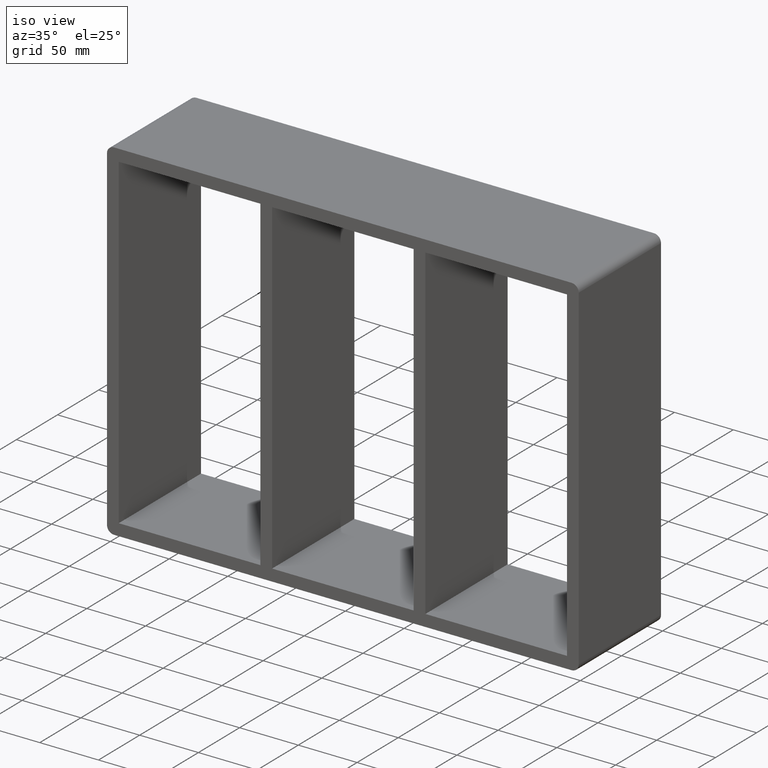
[diagram: clean part render]
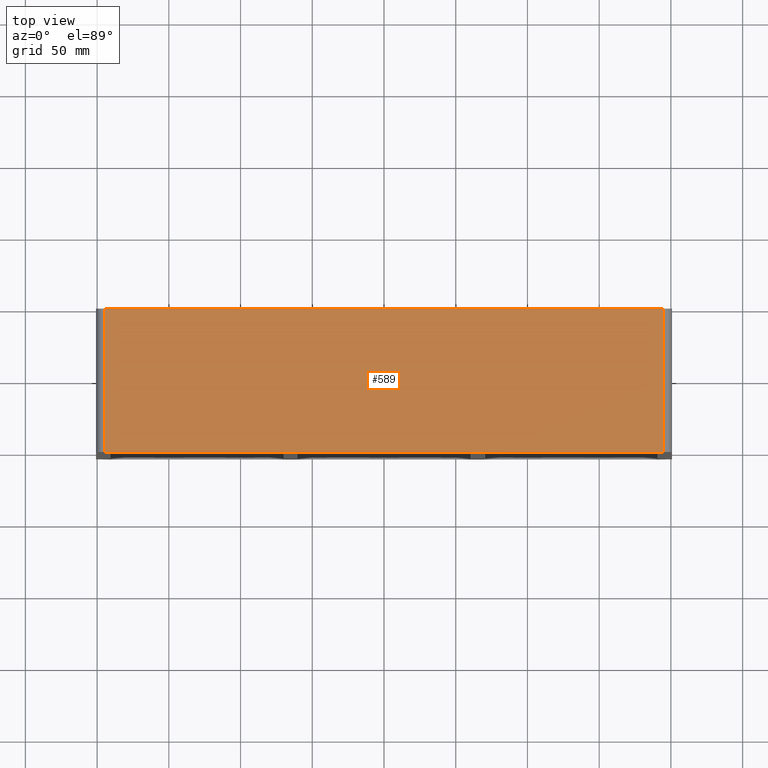
[diagram: tour spotlight — one face highlighted and labeled with its STEP entity id]
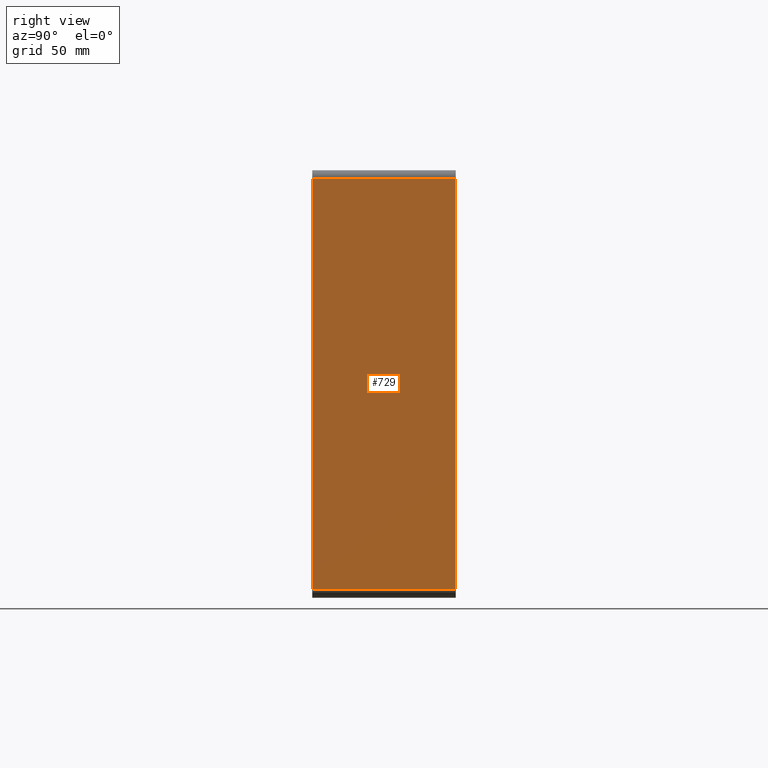
[diagram: tour spotlight — one face highlighted and labeled with its STEP entity id]
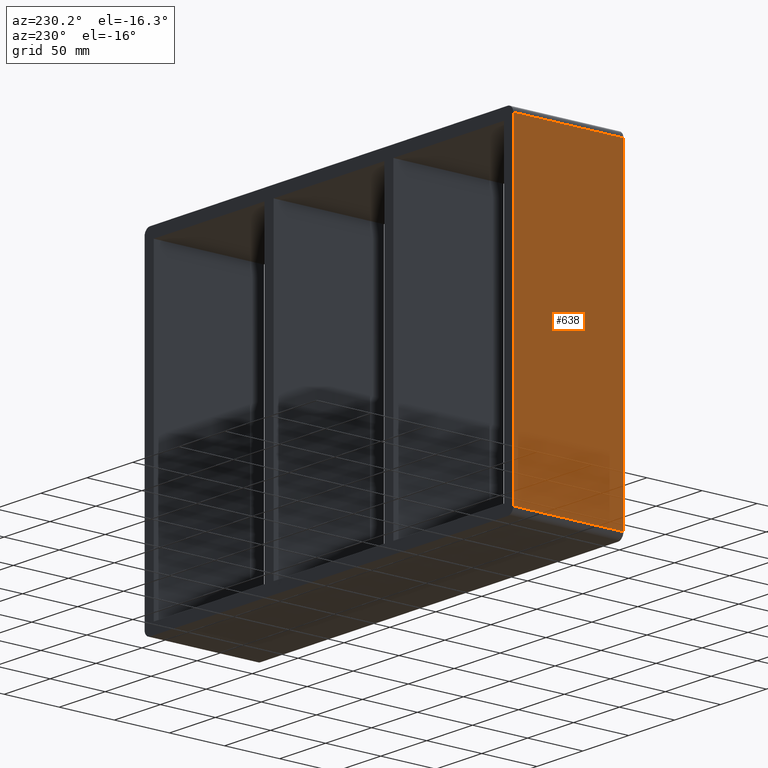
[diagram: tour spotlight — one face highlighted and labeled with its STEP entity id]
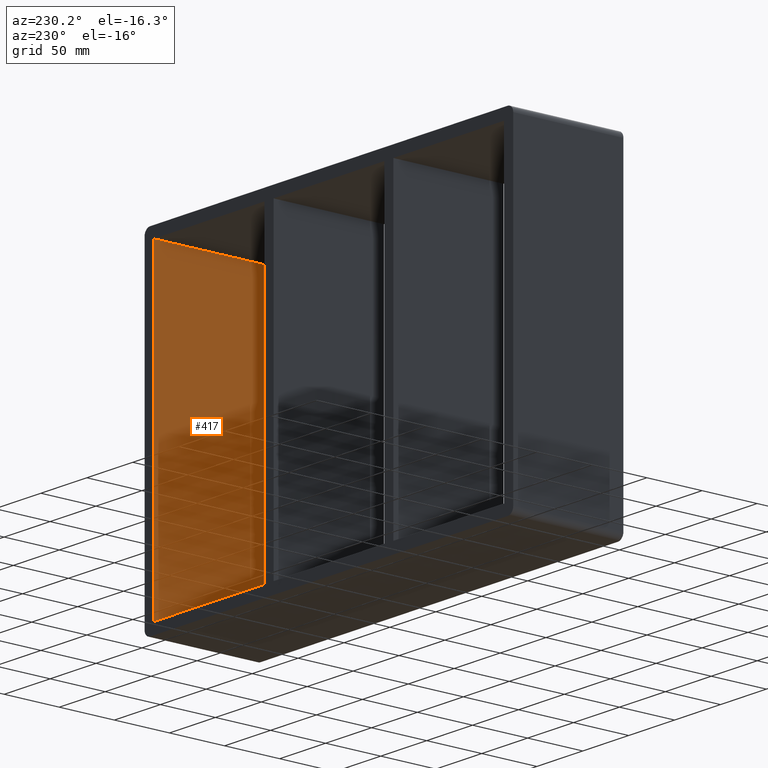
[diagram: tour spotlight — one face highlighted and labeled with its STEP entity id]
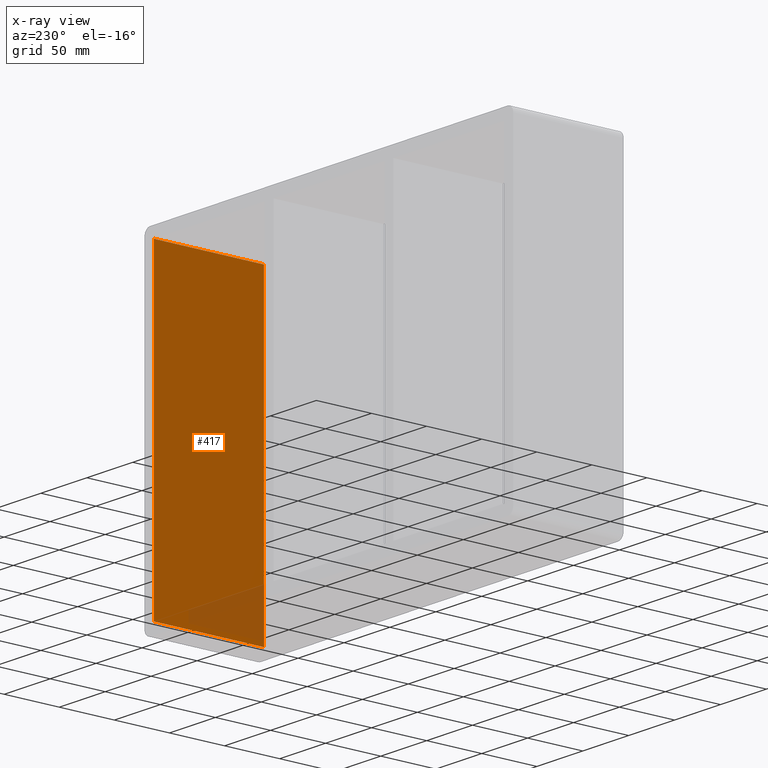
[diagram: x-ray of the same camera — body ghosted, this tour face saturated]
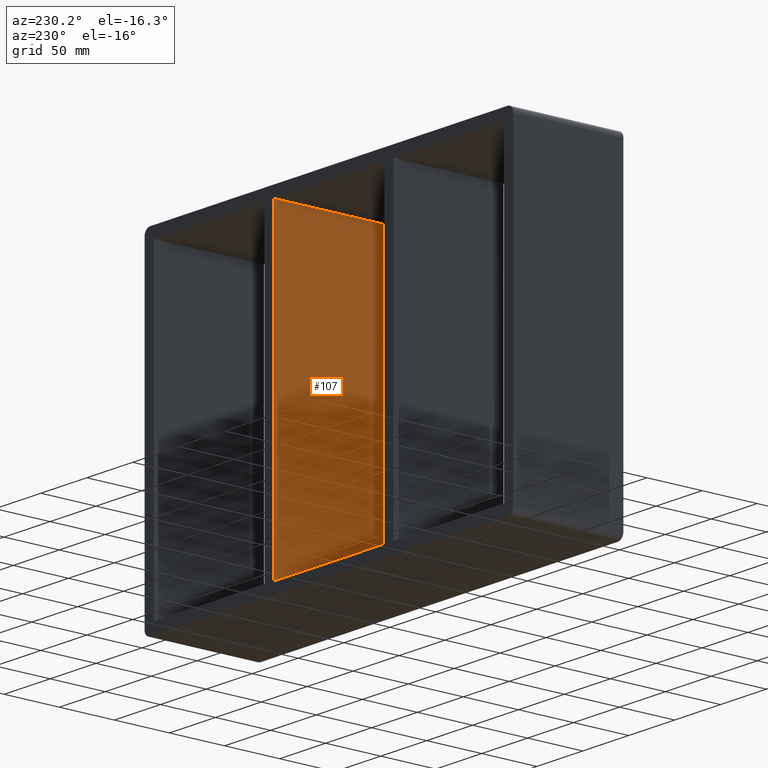
[diagram: tour spotlight — one face highlighted and labeled with its STEP entity id]
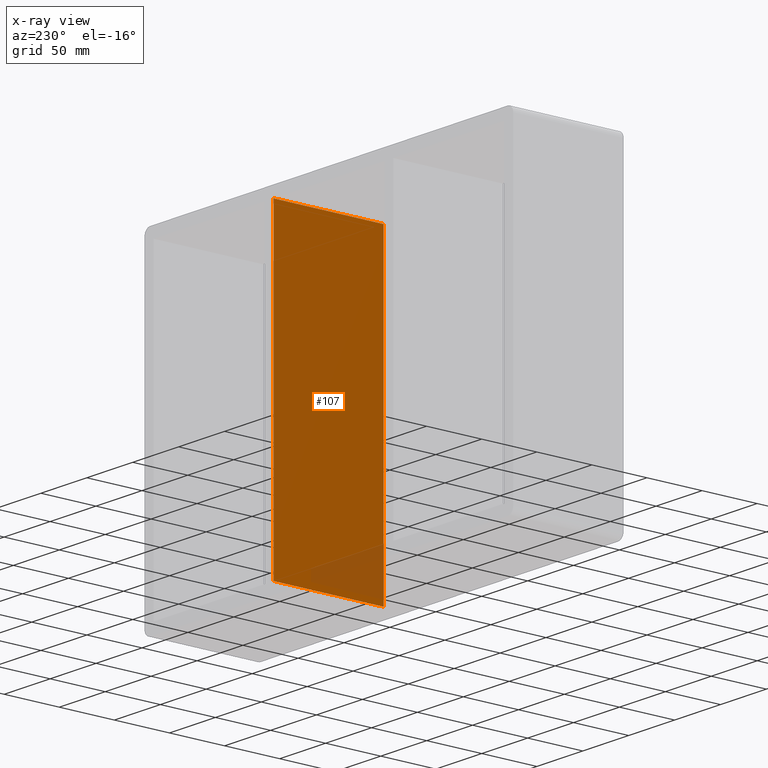
[diagram: x-ray of the same camera — body ghosted, this tour face saturated]
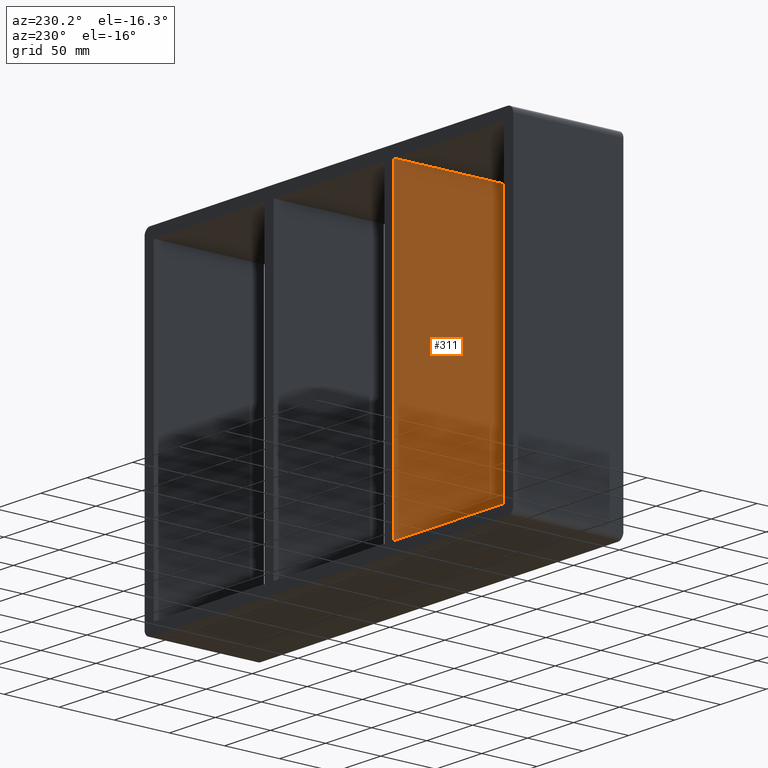
[diagram: tour spotlight — one face highlighted and labeled with its STEP entity id]
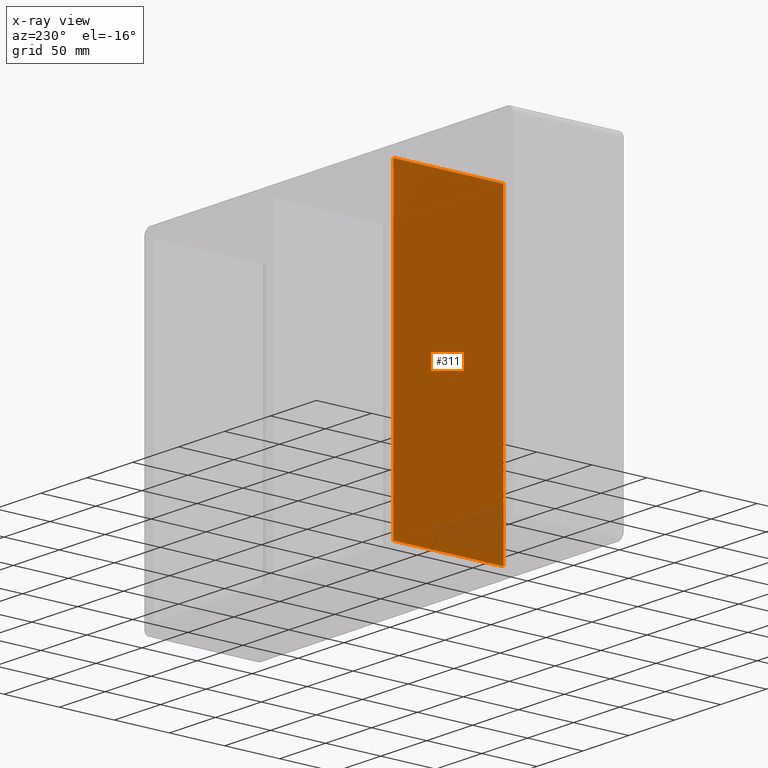
[diagram: x-ray of the same camera — body ghosted, this tour face saturated]
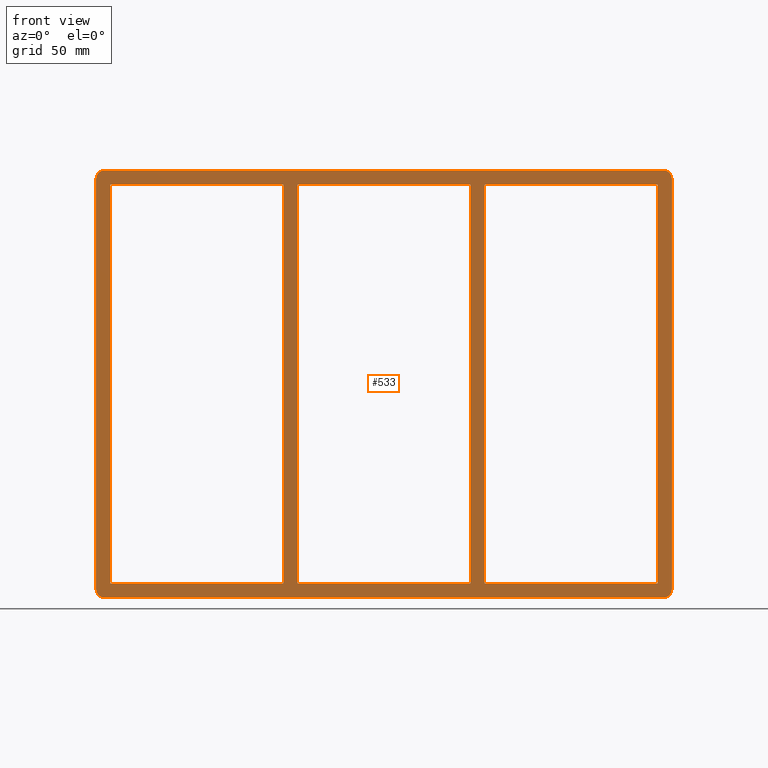
[diagram: tour spotlight — one face highlighted and labeled with its STEP entity id]
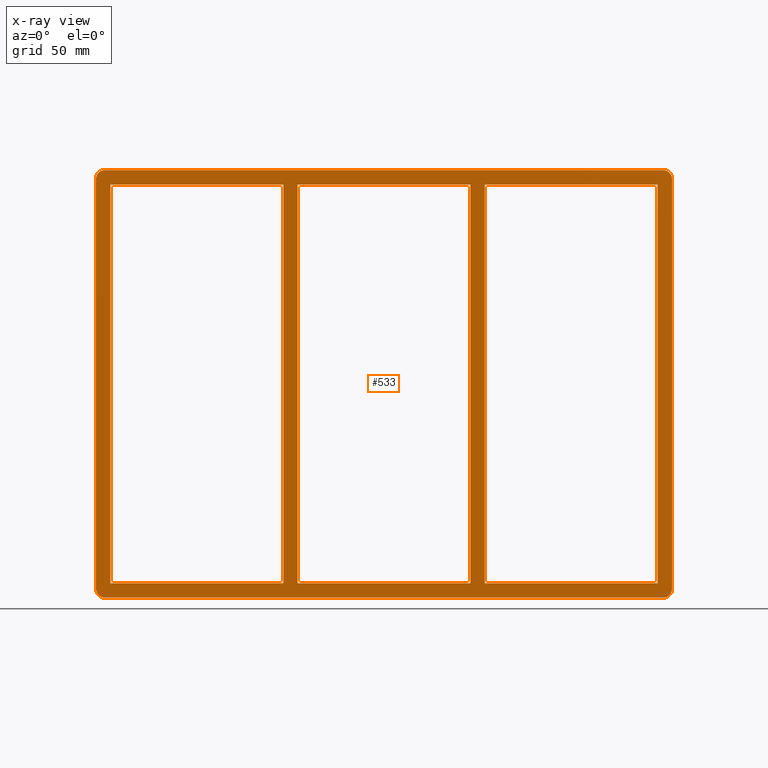
[diagram: x-ray of the same camera — body ghosted, this tour face saturated]
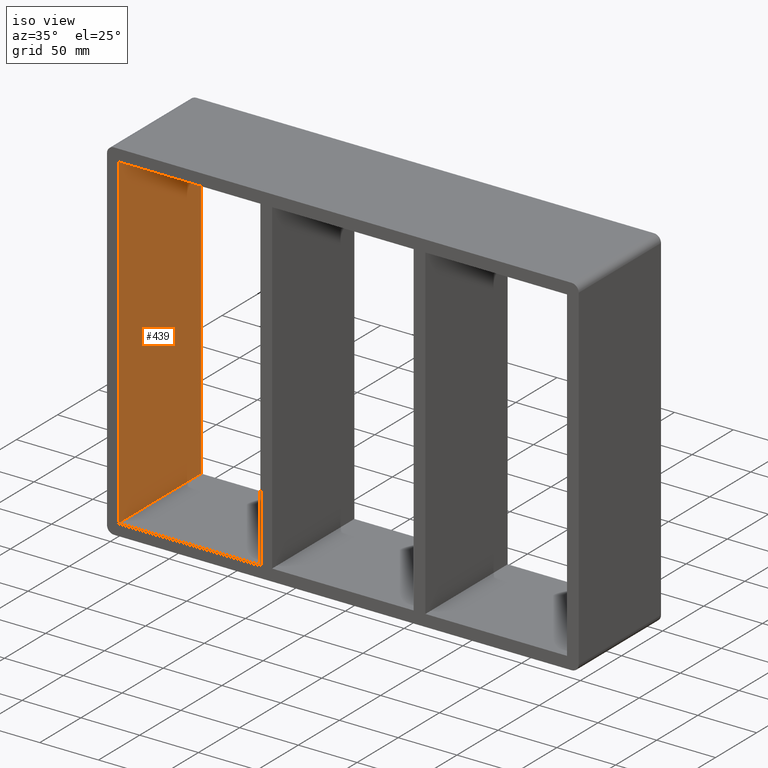
[diagram: tour spotlight — one face highlighted and labeled with its STEP entity id]
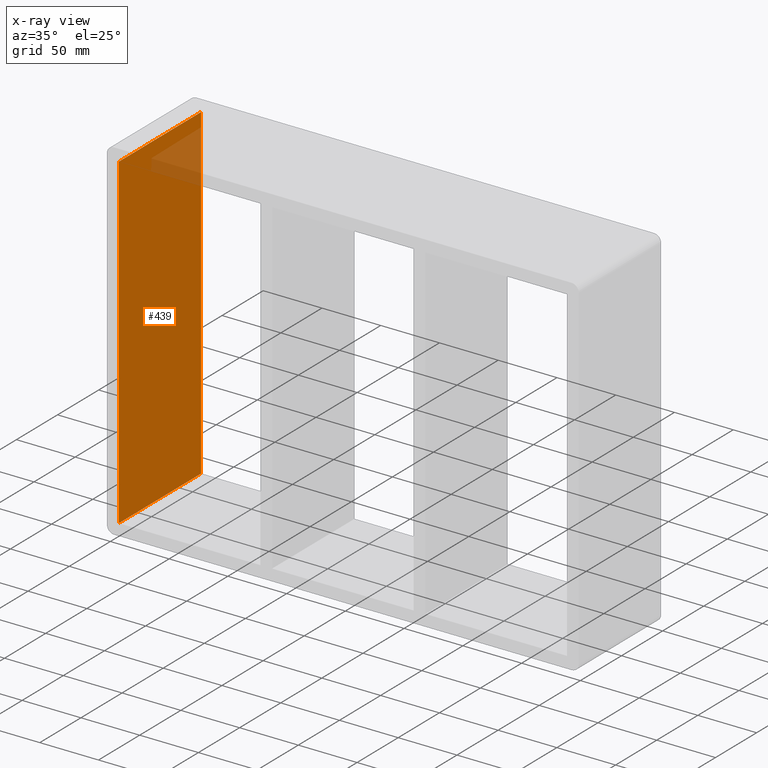
[diagram: x-ray of the same camera — body ghosted, this tour face saturated]
A machine part: a face-by-face anatomy tour. The part has 22 B-rep faces; the first image is the clean iso view, then the 8 largest visible faces are spotlighted one at a time (largest first), each with its STEP entity span.

Face 1 — top view, entity #589. In plain terms, the highlighted planar face has unit normal (0, 0, 1).
Definition (entity closure, byte-faithful):
#455=CARTESIAN_POINT('',(194.75,-3.0,149.00000000000003));
#456=VERTEX_POINT('',#455);
#464=CARTESIAN_POINT('',(-194.75,-3.0,149.00000000000003));
#465=VERTEX_POINT('',#464);
#466=CARTESIAN_POINT('',(194.75,-3.0,149.00000000000003));
#467=DIRECTION('',(-1.0,0.0,0.0));
#468=VECTOR('',#467,389.5);
#469=LINE('',#466,#468);
#470=EDGE_CURVE('',#456,#465,#469,.T.);
#547=CARTESIAN_POINT('',(194.75,97.0,149.00000000000003));
#548=VERTEX_POINT('',#547);
#556=CARTESIAN_POINT('',(194.75,-3.0,149.00000000000003));
#557=DIRECTION('',(0.0,1.0,0.0));
#558=VECTOR('',#557,100.0);
#559=LINE('',#556,#558);
#560=EDGE_CURVE('',#456,#548,#559,.T.);
#566=CARTESIAN_POINT('',(-194.75,0.0,149.00000000000003));
#567=DIRECTION('',(0.0,0.0,1.0));
#568=DIRECTION('',(1.0,0.0,0.0));
#569=AXIS2_PLACEMENT_3D('',#566,#567,#568);
#570=PLANE('',#569);
#571=ORIENTED_EDGE('',*,*,#560,.T.);
#572=CARTESIAN_POINT('',(-194.75,97.0,149.00000000000003));
#573=VERTEX_POINT('',#572);
#574=CARTESIAN_POINT('',(-194.75,97.0,149.00000000000003));
#575=DIRECTION('',(1.0,0.0,0.0));
#576=VECTOR('',#575,389.5);
#577=LINE('',#574,#576);
#578=EDGE_CURVE('',#573,#548,#577,.T.);
#579=ORIENTED_EDGE('',*,*,#578,.F.);
#580=CARTESIAN_POINT('',(-194.75,-3.0,149.00000000000003));
#581=DIRECTION('',(0.0,1.0,0.0));
#582=VECTOR('',#581,100.0);
#583=LINE('',#580,#582);
#584=EDGE_CURVE('',#465,#573,#583,.T.);
#585=ORIENTED_EDGE('',*,*,#584,.F.);
#586=ORIENTED_EDGE('',*,*,#470,.F.);
#587=EDGE_LOOP('',(#571,#579,#585,#586));
#588=FACE_OUTER_BOUND('',#587,.T.);
#589=ADVANCED_FACE('',(#588),#570,.T.);

Face 2 — right view, entity #729. In plain terms, the highlighted planar face has unit normal (1, 0, 0).
Definition (entity closure, byte-faithful):
#445=CARTESIAN_POINT('',(200.75000000000003,-3.0,-143.0));
#446=VERTEX_POINT('',#445);
#447=CARTESIAN_POINT('',(200.75000000000003,-3.0,143.0));
#448=VERTEX_POINT('',#447);
#449=CARTESIAN_POINT('',(200.75000000000003,-3.0,-142.99999999999997));
#450=DIRECTION('',(0.0,0.0,1.0));
#451=VECTOR('',#450,286.0);
#452=LINE('',#449,#451);
#453=EDGE_CURVE('',#446,#448,#452,.T.);
#539=CARTESIAN_POINT('',(200.75000000000003,97.0,143.0));
#540=VERTEX_POINT('',#539);
#541=CARTESIAN_POINT('',(200.75000000000003,97.0,143.0));
#542=DIRECTION('',(0.0,-1.0,0.0));
#543=VECTOR('',#542,100.0);
#544=LINE('',#541,#543);
#545=EDGE_CURVE('',#540,#448,#544,.T.);
#694=CARTESIAN_POINT('',(200.75000000000003,97.0,-143.0));
#695=VERTEX_POINT('',#694);
#703=CARTESIAN_POINT('',(200.75000000000003,-3.0,-143.0));
#704=DIRECTION('',(0.0,1.0,0.0));
#705=VECTOR('',#704,100.0);
#706=LINE('',#703,#705);
#707=EDGE_CURVE('',#446,#695,#706,.T.);
#713=CARTESIAN_POINT('',(200.75000000000003,0.0,143.0));
#714=DIRECTION('',(1.0,0.0,0.0));
#715=DIRECTION('',(0.0,0.0,-1.0));
#716=AXIS2_PLACEMENT_3D('',#713,#714,#715);
#717=PLANE('',#716);
#718=ORIENTED_EDGE('',*,*,#707,.T.);
#719=CARTESIAN_POINT('',(200.75000000000003,97.0,143.0));
#720=DIRECTION('',(0.0,0.0,-1.0));
#721=VECTOR('',#720,286.0);
#722=LINE('',#719,#721);
#723=EDGE_CURVE('',#540,#695,#722,.T.);
#724=ORIENTED_EDGE('',*,*,#723,.F.);
#725=ORIENTED_EDGE('',*,*,#545,.T.);
#726=ORIENTED_EDGE('',*,*,#453,.F.);
#727=EDGE_LOOP('',(#718,#724,#725,#726));
#728=FACE_OUTER_BOUND('',#727,.T.);
#729=ADVANCED_FACE('',(#728),#717,.T.);

Face 3 — auxiliary view, entity #638. In plain terms, the highlighted planar face has unit normal (-1, 0, 0).
Definition (entity closure, byte-faithful):
#472=CARTESIAN_POINT('',(-200.75000000000003,-3.0,143.0));
#473=VERTEX_POINT('',#472);
#481=CARTESIAN_POINT('',(-200.75000000000003,-3.0,-143.0));
#482=VERTEX_POINT('',#481);
#483=CARTESIAN_POINT('',(-200.75000000000003,-3.0,143.0));
#484=DIRECTION('',(0.0,0.0,-1.0));
#485=VECTOR('',#484,286.0);
#486=LINE('',#483,#485);
#487=EDGE_CURVE('',#473,#482,#486,.T.);
#596=CARTESIAN_POINT('',(-200.75000000000003,97.0,143.0));
#597=VERTEX_POINT('',#596);
#605=CARTESIAN_POINT('',(-200.75000000000003,-3.0,143.0));
#606=DIRECTION('',(0.0,1.0,0.0));
#607=VECTOR('',#606,100.0);
#608=LINE('',#605,#607);
#609=EDGE_CURVE('',#473,#597,#608,.T.);
#615=CARTESIAN_POINT('',(-200.75000000000003,0.0,-143.0));
#616=DIRECTION('',(-1.0,0.0,0.0));
#617=DIRECTION('',(0.0,0.0,1.0));
#618=AXIS2_PLACEMENT_3D('',#615,#616,#617);
#619=PLANE('',#618);
#620=ORIENTED_EDGE('',*,*,#609,.T.);
#621=CARTESIAN_POINT('',(-200.75000000000003,97.0,-143.0));
#622=VERTEX_POINT('',#621);
#623=CARTESIAN_POINT('',(-200.75000000000003,97.0,-142.99999999999997));
#624=DIRECTION('',(0.0,0.0,1.0));
#625=VECTOR('',#624,286.0);
#626=LINE('',#623,#625);
#627=EDGE_CURVE('',#622,#597,#626,.T.);
#628=ORIENTED_EDGE('',*,*,#627,.F.);
#629=CARTESIAN_POINT('',(-200.75000000000003,-3.0,-143.0));
#630=DIRECTION('',(0.0,1.0,0.0));
#631=VECTOR('',#630,100.0);
#632=LINE('',#629,#631);
#633=EDGE_CURVE('',#482,#622,#632,.T.);
#634=ORIENTED_EDGE('',*,*,#633,.F.);
#635=ORIENTED_EDGE('',*,*,#487,.F.);
#636=EDGE_LOOP('',(#620,#628,#634,#635));
#637=FACE_OUTER_BOUND('',#636,.T.);
#638=ADVANCED_FACE('',(#637),#619,.T.);

Face 4 — auxiliary view, entity #417. An x-ray twin of the same camera follows (body ghosted, this face saturated) — the face is partly hidden behind the body. In plain terms, the highlighted planar face has unit normal (1, 0, 0).
Definition (entity closure, byte-faithful):
#185=CARTESIAN_POINT('',(190.75,-3.0,-139.0));
#186=VERTEX_POINT('',#185);
#193=CARTESIAN_POINT('',(190.75,97.0,-139.0));
#194=VERTEX_POINT('',#193);
#195=CARTESIAN_POINT('',(190.75,97.0,-139.0));
#196=DIRECTION('',(0.0,-1.0,0.0));
#197=VECTOR('',#196,100.0);
#198=LINE('',#195,#197);
#199=EDGE_CURVE('',#194,#186,#198,.T.);
#216=CARTESIAN_POINT('',(190.75,97.0,139.0));
#217=VERTEX_POINT('',#216);
#224=CARTESIAN_POINT('',(190.75,-3.0,139.0));
#225=VERTEX_POINT('',#224);
#226=CARTESIAN_POINT('',(190.75,-3.0,139.0));
#227=DIRECTION('',(0.0,1.0,0.0));
#228=VECTOR('',#227,100.0);
#229=LINE('',#226,#228);
#230=EDGE_CURVE('',#225,#217,#229,.T.);
#396=CARTESIAN_POINT('',(190.75,0.0,139.0));
#397=DIRECTION('',(1.0,0.0,0.0));
#398=DIRECTION('',(0.0,0.0,-1.0));
#399=AXIS2_PLACEMENT_3D('',#396,#397,#398);
#400=PLANE('',#399);
#401=ORIENTED_EDGE('',*,*,#199,.T.);
#402=CARTESIAN_POINT('',(190.75,-3.0,139.0));
#403=DIRECTION('',(0.0,0.0,-1.0));
#404=VECTOR('',#403,278.0);
#405=LINE('',#402,#404);
#406=EDGE_CURVE('',#225,#186,#405,.T.);
#407=ORIENTED_EDGE('',*,*,#406,.F.);
#408=ORIENTED_EDGE('',*,*,#230,.T.);
#409=CARTESIAN_POINT('',(190.75,97.0,-139.0));
#410=DIRECTION('',(0.0,0.0,1.0));
#411=VECTOR('',#410,278.0);
#412=LINE('',#409,#411);
#413=EDGE_CURVE('',#194,#217,#412,.T.);
#414=ORIENTED_EDGE('',*,*,#413,.F.);
#415=EDGE_LOOP('',(#401,#407,#408,#414));
#416=FACE_OUTER_BOUND('',#415,.T.);
#417=ADVANCED_FACE('',(#416),#400,.F.);

Face 5 — auxiliary view, entity #107. An x-ray twin of the same camera follows (body ghosted, this face saturated) — the face is partly hidden behind the body. In plain terms, the highlighted planar face has unit normal (-1, 0, 0).
Definition (entity closure, byte-faithful):
#68=CARTESIAN_POINT('',(60.24999999998407,-3.0,-139.0));
#69=DIRECTION('',(-1.0,0.0,0.0));
#70=DIRECTION('',(0.0,0.0,1.0));
#71=AXIS2_PLACEMENT_3D('',#68,#69,#70);
#72=PLANE('',#71);
#73=CARTESIAN_POINT('',(60.24999999998407,-3.0,-139.0));
#74=VERTEX_POINT('',#73);
#75=CARTESIAN_POINT('',(60.249999999983999,-3.0,139.0));
#76=VERTEX_POINT('',#75);
#77=CARTESIAN_POINT('',(60.24999999998407,-3.0,-139.0));
#78=DIRECTION('',(0.0,0.0,1.0));
#79=VECTOR('',#78,278.0);
#80=LINE('',#77,#79);
#81=EDGE_CURVE('',#74,#76,#80,.T.);
#82=ORIENTED_EDGE('',*,*,#81,.T.);
#83=CARTESIAN_POINT('',(60.249999999983999,97.0,139.0));
#84=VERTEX_POINT('',#83);
#85=CARTESIAN_POINT('',(60.249999999983999,97.0,139.0));
#86=DIRECTION('',(0.0,-1.0,0.0));
#87=VECTOR('',#86,100.0);
#88=LINE('',#85,#87);
#89=EDGE_CURVE('',#84,#76,#88,.T.);
#90=ORIENTED_EDGE('',*,*,#89,.F.);
#91=CARTESIAN_POINT('',(60.24999999998407,97.0,-139.0));
#92=VERTEX_POINT('',#91);
#93=CARTESIAN_POINT('',(60.24999999998407,97.0,-139.0));
#94=DIRECTION('',(0.0,0.0,1.0));
#95=VECTOR('',#94,278.0);
#96=LINE('',#93,#95);
#97=EDGE_CURVE('',#92,#84,#96,.T.);
#98=ORIENTED_EDGE('',*,*,#97,.F.);
#99=CARTESIAN_POINT('',(60.24999999998407,-3.0,-139.0));
#100=DIRECTION('',(0.0,1.0,0.0));
#101=VECTOR('',#100,100.0);
#102=LINE('',#99,#101);
#103=EDGE_CURVE('',#74,#92,#102,.T.);
#104=ORIENTED_EDGE('',*,*,#103,.F.);
#105=EDGE_LOOP('',(#82,#90,#98,#104));
#106=FACE_OUTER_BOUND('',#105,.T.);
#107=ADVANCED_FACE('',(#106),#72,.T.);

Face 6 — auxiliary view, entity #311. An x-ray twin of the same camera follows (body ghosted, this face saturated) — the face is partly hidden behind the body. In plain terms, the highlighted planar face has unit normal (-1, 0, 0).
Definition (entity closure, byte-faithful):
#272=CARTESIAN_POINT('',(-70.250000000015945,-3.0,-139.0));
#273=DIRECTION('',(-1.0,0.0,0.0));
#274=DIRECTION('',(0.0,0.0,1.0));
#275=AXIS2_PLACEMENT_3D('',#272,#273,#274);
#276=PLANE('',#275);
#277=CARTESIAN_POINT('',(-70.250000000015945,-3.0,-139.0));
#278=VERTEX_POINT('',#277);
#279=CARTESIAN_POINT('',(-70.250000000016001,-3.0,139.0));
#280=VERTEX_POINT('',#279);
#281=CARTESIAN_POINT('',(-70.250000000015945,-3.0,-139.0));
#282=DIRECTION('',(0.0,0.0,1.0));
#283=VECTOR('',#282,278.0);
#284=LINE('',#281,#283);
#285=EDGE_CURVE('',#278,#280,#284,.T.);
#286=ORIENTED_EDGE('',*,*,#285,.T.);
#287=CARTESIAN_POINT('',(-70.250000000016001,97.0,139.0));
#288=VERTEX_POINT('',#287);
#289=CARTESIAN_POINT('',(-70.250000000016001,97.0,139.0));
#290=DIRECTION('',(0.0,-1.0,0.0));
#291=VECTOR('',#290,100.0);
#292=LINE('',#289,#291);
#293=EDGE_CURVE('',#288,#280,#292,.T.);
#294=ORIENTED_EDGE('',*,*,#293,.F.);
#295=CARTESIAN_POINT('',(-70.250000000015945,97.0,-139.0));
#296=VERTEX_POINT('',#295);
#297=CARTESIAN_POINT('',(-70.250000000015945,97.0,-139.0));
#298=DIRECTION('',(0.0,0.0,1.0));
#299=VECTOR('',#298,278.0);
#300=LINE('',#297,#299);
#301=EDGE_CURVE('',#296,#288,#300,.T.);
#302=ORIENTED_EDGE('',*,*,#301,.F.);
#303=CARTESIAN_POINT('',(-70.250000000015945,-3.0,-139.0));
#304=DIRECTION('',(0.0,1.0,0.0));
#305=VECTOR('',#304,100.0);
#306=LINE('',#303,#305);
#307=EDGE_CURVE('',#278,#296,#306,.T.);
#308=ORIENTED_EDGE('',*,*,#307,.F.);
#309=EDGE_LOOP('',(#286,#294,#302,#308));
#310=FACE_OUTER_BOUND('',#309,.T.);
#311=ADVANCED_FACE('',(#310),#276,.T.);

Face 7 — front view, entity #533. An x-ray twin of the same camera follows (body ghosted, this face saturated) — the face is partly hidden behind the body. In plain terms, the highlighted planar face has unit normal (0, -1, 0).
Definition (entity closure, byte-faithful):
#73=CARTESIAN_POINT('',(60.24999999998407,-3.0,-139.0));
#74=VERTEX_POINT('',#73);
#75=CARTESIAN_POINT('',(60.249999999983999,-3.0,139.0));
#76=VERTEX_POINT('',#75);
#77=CARTESIAN_POINT('',(60.24999999998407,-3.0,-139.0));
#78=DIRECTION('',(0.0,0.0,1.0));
#79=VECTOR('',#78,278.0);
#80=LINE('',#77,#79);
#81=EDGE_CURVE('',#74,#76,#80,.T.);
#113=CARTESIAN_POINT('',(70.249999999994543,-3.0,139.0));
#114=VERTEX_POINT('',#113);
#115=CARTESIAN_POINT('',(70.249999999994543,-3.0,-138.99999999999804));
#116=VERTEX_POINT('',#115);
#117=CARTESIAN_POINT('',(70.249999999994543,-3.0,139.0));
#118=DIRECTION('',(0.0,0.0,-1.0));
#119=VECTOR('',#118,277.99999999999801);
#120=LINE('',#117,#119);
#121=EDGE_CURVE('',#114,#116,#120,.T.);
#162=CARTESIAN_POINT('',(-60.250000000005457,-3.0,-138.99999999999804));
#163=VERTEX_POINT('',#162);
#170=CARTESIAN_POINT('',(60.24999999998407,-3.0,-139.0));
#171=DIRECTION('',(-1.0,0.0,0.0));
#172=VECTOR('',#171,120.49999999998953);
#173=LINE('',#170,#172);
#174=EDGE_CURVE('',#74,#163,#173,.T.);
#185=CARTESIAN_POINT('',(190.75,-3.0,-139.0));
#186=VERTEX_POINT('',#185);
#187=CARTESIAN_POINT('',(190.75,-3.0,-139.0));
#188=DIRECTION('',(-1.0,0.0,0.0));
#189=VECTOR('',#188,120.50000000000544);
#190=LINE('',#187,#189);
#191=EDGE_CURVE('',#186,#116,#190,.T.);
#224=CARTESIAN_POINT('',(190.75,-3.0,139.0));
#225=VERTEX_POINT('',#224);
#232=CARTESIAN_POINT('',(70.249999999994557,-3.0,139.0));
#233=DIRECTION('',(1.0,0.0,0.0));
#234=VECTOR('',#233,120.50000000000544);
#235=LINE('',#232,#234);
#236=EDGE_CURVE('',#114,#225,#235,.T.);
#247=CARTESIAN_POINT('',(-60.250000000005457,-3.0,139.0));
#248=VERTEX_POINT('',#247);
#249=CARTESIAN_POINT('',(-60.250000000005457,-3.0,139.0));
#250=DIRECTION('',(1.0,0.0,0.0));
#251=VECTOR('',#250,120.49999999998947);
#252=LINE('',#249,#251);
#253=EDGE_CURVE('',#248,#76,#252,.T.);
#277=CARTESIAN_POINT('',(-70.250000000015945,-3.0,-139.0));
#278=VERTEX_POINT('',#277);
#279=CARTESIAN_POINT('',(-70.250000000016001,-3.0,139.0));
#280=VERTEX_POINT('',#279);
#281=CARTESIAN_POINT('',(-70.250000000015945,-3.0,-139.0));
#282=DIRECTION('',(0.0,0.0,1.0));
#283=VECTOR('',#282,278.0);
#284=LINE('',#281,#283);
#285=EDGE_CURVE('',#278,#280,#284,.T.);
#317=CARTESIAN_POINT('',(-60.250000000005457,-3.0,139.0));
#318=DIRECTION('',(0.0,0.0,-1.0));
#319=VECTOR('',#318,277.99999999999801);
#320=LINE('',#317,#319);
#321=EDGE_CURVE('',#248,#163,#320,.T.);
#348=CARTESIAN_POINT('',(-190.75000000000006,-3.0,-139.0));
#349=VERTEX_POINT('',#348);
#356=CARTESIAN_POINT('',(-70.250000000015916,-3.0,-139.0));
#357=DIRECTION('',(-1.0,0.0,0.0));
#358=VECTOR('',#357,120.49999999998414);
#359=LINE('',#356,#358);
#360=EDGE_CURVE('',#278,#349,#359,.T.);
#371=CARTESIAN_POINT('',(-190.75000000000006,-3.0,139.0));
#372=VERTEX_POINT('',#371);
#373=CARTESIAN_POINT('',(-190.75000000000006,-3.0,139.0));
#374=DIRECTION('',(1.0,0.0,0.0));
#375=VECTOR('',#374,120.49999999998406);
#376=LINE('',#373,#375);
#377=EDGE_CURVE('',#372,#280,#376,.T.);
#402=CARTESIAN_POINT('',(190.75,-3.0,139.0));
#403=DIRECTION('',(0.0,0.0,-1.0));
#404=VECTOR('',#403,278.0);
#405=LINE('',#402,#404);
#406=EDGE_CURVE('',#225,#186,#405,.T.);
#424=CARTESIAN_POINT('',(-190.75000000000003,-3.0,-139.0));
#425=DIRECTION('',(0.0,0.0,1.0));
#426=VECTOR('',#425,278.0);
#427=LINE('',#424,#426);
#428=EDGE_CURVE('',#349,#372,#427,.T.);
#440=CARTESIAN_POINT('',(0.0,-3.0,1.651722E-014));
#441=DIRECTION('',(0.0,-1.0,0.0));
#442=DIRECTION('',(0.0,0.0,-1.0));
#443=AXIS2_PLACEMENT_3D('',#440,#441,#442);
#444=PLANE('',#443);
#445=CARTESIAN_POINT('',(200.75000000000003,-3.0,-143.0));
#446=VERTEX_POINT('',#445);
#447=CARTESIAN_POINT('',(200.75000000000003,-3.0,143.0));
#448=VERTEX_POINT('',#447);
#449=CARTESIAN_POINT('',(200.75000000000003,-3.0,-142.99999999999997));
#450=DIRECTION('',(0.0,0.0,1.0));
#451=VECTOR('',#450,286.0);
#452=LINE('',#449,#451);
#453=EDGE_CURVE('',#446,#448,#452,.T.);
#454=ORIENTED_EDGE('',*,*,#453,.T.);
#455=CARTESIAN_POINT('',(194.75,-3.0,149.00000000000003));
#456=VERTEX_POINT('',#455);
#457=CARTESIAN_POINT('',(194.75,-3.0,143.00000000000003));
#458=DIRECTION('',(0.0,-1.0,0.0));
#459=DIRECTION('',(0.0,0.0,1.0));
#460=AXIS2_PLACEMENT_3D('',#457,#458,#459);
#461=CIRCLE('',#460,6.000000000000001);
#462=EDGE_CURVE('',#448,#456,#461,.T.);
#463=ORIENTED_EDGE('',*,*,#462,.T.);
#464=CARTESIAN_POINT('',(-194.75,-3.0,149.00000000000003));
#465=VERTEX_POINT('',#464);
#466=CARTESIAN_POINT('',(194.75,-3.0,149.00000000000003));
#467=DIRECTION('',(-1.0,0.0,0.0));
#468=VECTOR('',#467,389.5);
#469=LINE('',#466,#468);
#470=EDGE_CURVE('',#456,#465,#469,.T.);
#471=ORIENTED_EDGE('',*,*,#470,.T.);
#472=CARTESIAN_POINT('',(-200.75000000000003,-3.0,143.0));
#473=VERTEX_POINT('',#472);
#474=CARTESIAN_POINT('',(-194.75,-3.0,143.00000000000003));
#475=DIRECTION('',(0.0,-1.0,0.0));
#476=DIRECTION('',(-1.0,0.0,0.0));
#477=AXIS2_PLACEMENT_3D('',#474,#475,#476);
#478=CIRCLE('',#477,6.000000000000001);
#479=EDGE_CURVE('',#465,#473,#478,.T.);
#480=ORIENTED_EDGE('',*,*,#479,.T.);
#481=CARTESIAN_POINT('',(-200.75000000000003,-3.0,-143.0));
#482=VERTEX_POINT('',#481);
#483=CARTESIAN_POINT('',(-200.75000000000003,-3.0,143.0));
#484=DIRECTION('',(0.0,0.0,-1.0));
#485=VECTOR('',#484,286.0);
#486=LINE('',#483,#485);
#487=EDGE_CURVE('',#473,#482,#486,.T.);
#488=ORIENTED_EDGE('',*,*,#487,.T.);
#489=CARTESIAN_POINT('',(-194.75,-3.0,-149.0));
#490=VERTEX_POINT('',#489);
#491=CARTESIAN_POINT('',(-194.75,-3.0,-143.0));
#492=DIRECTION('',(0.0,-1.0,0.0));
#493=DIRECTION('',(0.0,0.0,-1.0));
#494=AXIS2_PLACEMENT_3D('',#491,#492,#493);
#495=CIRCLE('',#494,6.000000000000001);
#496=EDGE_CURVE('',#482,#490,#495,.T.);
#497=ORIENTED_EDGE('',*,*,#496,.T.);
#498=CARTESIAN_POINT('',(194.75,-3.0,-149.0));
#499=VERTEX_POINT('',#498);
#500=CARTESIAN_POINT('',(-194.75,-3.0,-149.0));
#501=DIRECTION('',(1.0,0.0,0.0));
#502=VECTOR('',#501,389.5);
#503=LINE('',#500,#502);
#504=EDGE_CURVE('',#490,#499,#503,.T.);
#505=ORIENTED_EDGE('',*,*,#504,.T.);
#506=CARTESIAN_POINT('',(194.75,-3.0,-143.0));
#507=DIRECTION('',(0.0,-1.0,0.0));
#508=DIRECTION('',(1.0,0.0,0.0));
#509=AXIS2_PLACEMENT_3D('',#506,#507,#508);
#510=CIRCLE('',#509,6.000000000000001);
#511=EDGE_CURVE('',#499,#446,#510,.T.);
#512=ORIENTED_EDGE('',*,*,#511,.T.);
#513=EDGE_LOOP('',(#454,#463,#471,#480,#488,#497,#505,#512));
#514=FACE_OUTER_BOUND('',#513,.T.);
#515=ORIENTED_EDGE('',*,*,#174,.T.);
#516=ORIENTED_EDGE('',*,*,#321,.F.);
#517=ORIENTED_EDGE('',*,*,#253,.T.);
#518=ORIENTED_EDGE('',*,*,#81,.F.);
#519=EDGE_LOOP('',(#515,#516,#517,#518));
#520=FACE_BOUND('',#519,.T.);
#521=ORIENTED_EDGE('',*,*,#360,.T.);
#522=ORIENTED_EDGE('',*,*,#428,.T.);
#523=ORIENTED_EDGE('',*,*,#377,.T.);
#524=ORIENTED_EDGE('',*,*,#285,.F.);
#525=EDGE_LOOP('',(#521,#522,#523,#524));
#526=FACE_BOUND('',#525,.T.);
#527=ORIENTED_EDGE('',*,*,#121,.F.);
#528=ORIENTED_EDGE('',*,*,#236,.T.);
#529=ORIENTED_EDGE('',*,*,#406,.T.);
#530=ORIENTED_EDGE('',*,*,#191,.T.);
#531=EDGE_LOOP('',(#527,#528,#529,#530));
#532=FACE_BOUND('',#531,.T.);
#533=ADVANCED_FACE('',(#514,#520,#526,#532),#444,.T.);

Face 8 — iso view, entity #439. An x-ray twin of the same camera follows (body ghosted, this face saturated) — the face is partly hidden behind the body. In plain terms, the highlighted planar face has unit normal (-1, 0, 0).
Definition (entity closure, byte-faithful):
#340=CARTESIAN_POINT('',(-190.75000000000006,97.0,-139.0));
#341=VERTEX_POINT('',#340);
#348=CARTESIAN_POINT('',(-190.75000000000006,-3.0,-139.0));
#349=VERTEX_POINT('',#348);
#350=CARTESIAN_POINT('',(-190.75000000000003,-3.0,-139.0));
#351=DIRECTION('',(0.0,1.0,0.0));
#352=VECTOR('',#351,100.0);
#353=LINE('',#350,#352);
#354=EDGE_CURVE('',#349,#341,#353,.T.);
#371=CARTESIAN_POINT('',(-190.75000000000006,-3.0,139.0));
#372=VERTEX_POINT('',#371);
#379=CARTESIAN_POINT('',(-190.75000000000006,97.0,139.0));
#380=VERTEX_POINT('',#379);
#381=CARTESIAN_POINT('',(-190.75000000000003,-3.0,139.0));
#382=DIRECTION('',(0.0,1.0,0.0));
#383=VECTOR('',#382,100.0);
#384=LINE('',#381,#383);
#385=EDGE_CURVE('',#372,#380,#384,.T.);
#418=CARTESIAN_POINT('',(-190.75000000000003,0.0,-139.0));
#419=DIRECTION('',(-1.0,0.0,0.0));
#420=DIRECTION('',(0.0,0.0,1.0));
#421=AXIS2_PLACEMENT_3D('',#418,#419,#420);
#422=PLANE('',#421);
#423=ORIENTED_EDGE('',*,*,#385,.F.);
#424=CARTESIAN_POINT('',(-190.75000000000003,-3.0,-139.0));
#425=DIRECTION('',(0.0,0.0,1.0));
#426=VECTOR('',#425,278.0);
#427=LINE('',#424,#426);
#428=EDGE_CURVE('',#349,#372,#427,.T.);
#429=ORIENTED_EDGE('',*,*,#428,.F.);
#430=ORIENTED_EDGE('',*,*,#354,.T.);
#431=CARTESIAN_POINT('',(-190.75000000000003,97.0,139.0));
#432=DIRECTION('',(0.0,0.0,-1.0));
#433=VECTOR('',#432,278.0);
#434=LINE('',#431,#433);
#435=EDGE_CURVE('',#380,#341,#434,.T.);
#436=ORIENTED_EDGE('',*,*,#435,.F.);
#437=EDGE_LOOP('',(#423,#429,#430,#436));
#438=FACE_OUTER_BOUND('',#437,.T.);
#439=ADVANCED_FACE('',(#438),#422,.F.);